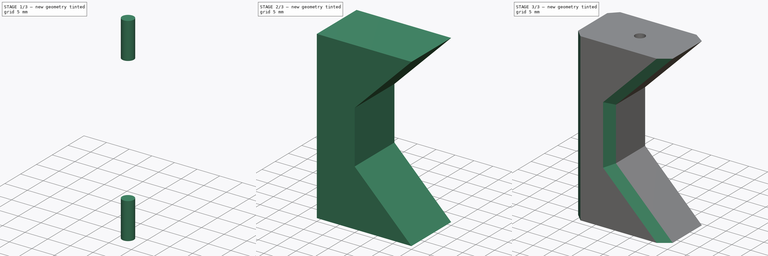
[diagram: build sequence overview — one tinted view per stage of 3, left to right]
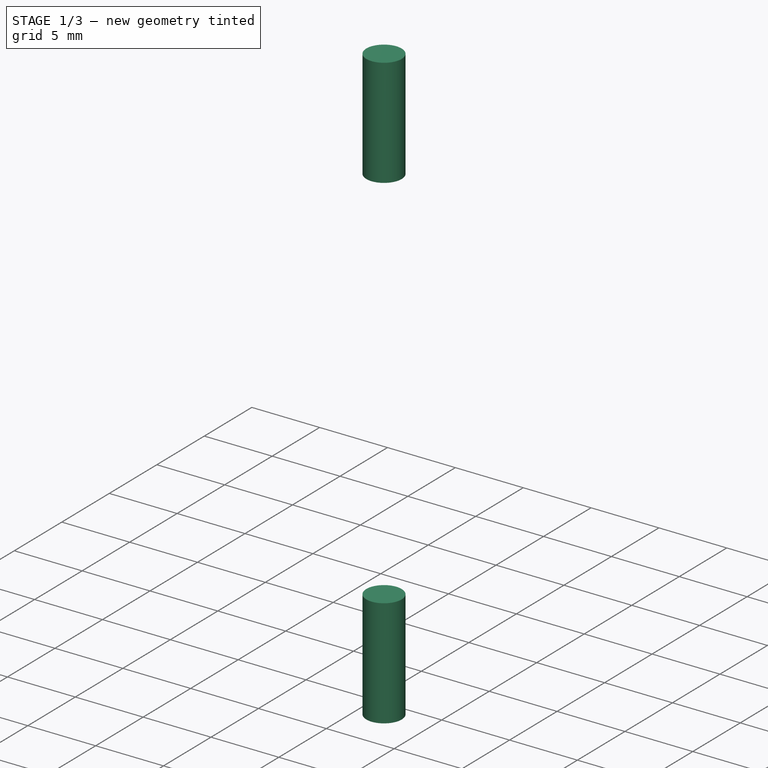
[diagram: stage 1 of 3 — iso view after this stage's code; geometry added in this stage tinted green]
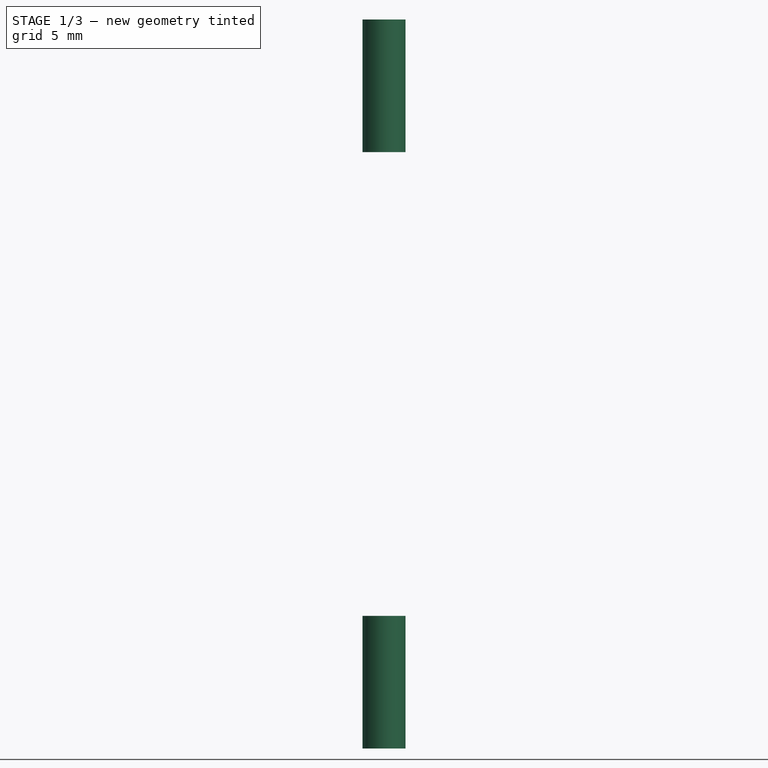
[diagram: stage 1 of 3 — front view after this stage's code; geometry added in this stage tinted green]
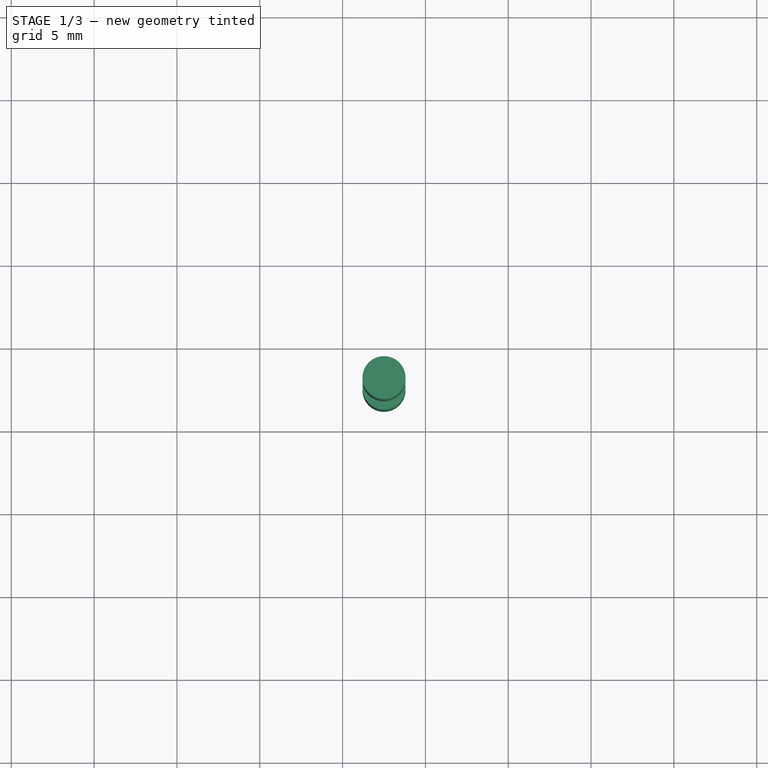
[diagram: stage 1 of 3 — top view after this stage's code; geometry added in this stage tinted green]
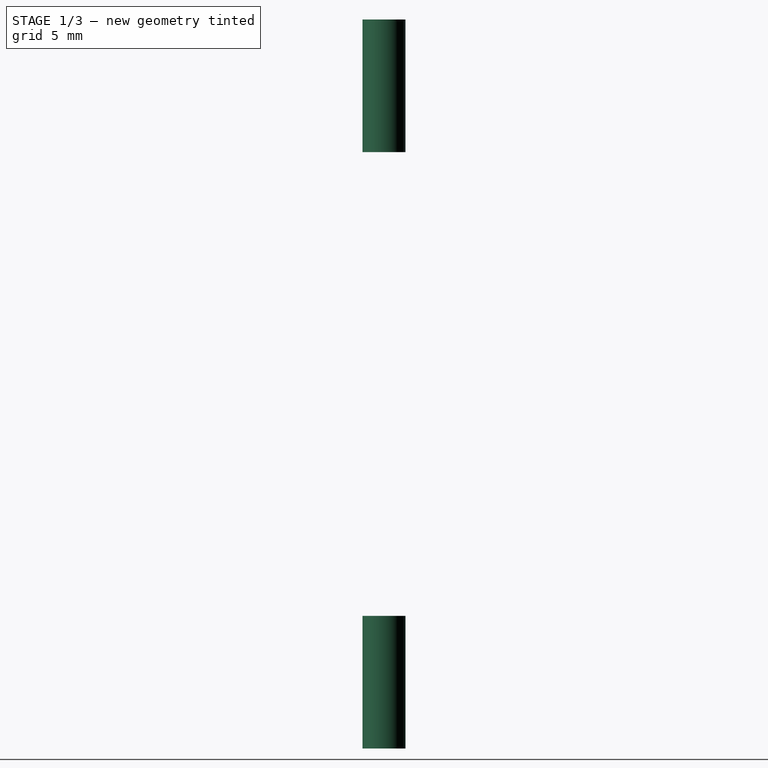
[diagram: stage 1 of 3 — right view after this stage's code; geometry added in this stage tinted green]
FCSTD DOCUMENT  (FreeCAD 0.18.4R)
Label: spacer
License: All rights reserved
LicenseURL: http://en.wikipedia.org/wiki/All_rights_reserved
objects: Part::Cylinder×2, Sketcher::SketchObject×1, PartDesign::Body×1, Part::Extrusion×1, Part::Chamfer×1, Part::MultiFuse×1, Part::Cut×1
note: 8 computed .brp shape members not serialized (recipe doc carries the construction recipe); baked Part::Feature solids carry a one-line shape summary decoded from their .brp

FEATURE [Sketcher::SketchObject] Sketch
  MapMode = 5
  Placement = pos=(0,0,0) rot=(1,0,0;1.5708rad)
  Support = -> [XZ_Plane]
  sketch-geometry (6):
    g0: LineSegment StartX=0 StartY=0 StartZ=0 EndX=25 EndY=0 EndZ=0
    g1: LineSegment StartX=25 StartY=44 StartZ=0 EndX=0 EndY=44 EndZ=0
    g2: LineSegment StartX=0 StartY=44 StartZ=0 EndX=0 EndY=0 EndZ=0
    g3: LineSegment StartX=25 StartY=44 StartZ=0 EndX=10 EndY=29 EndZ=0
    g4: LineSegment StartX=10 StartY=29 StartZ=0 EndX=10 EndY=15 EndZ=0
    g5: LineSegment StartX=10 StartY=15 StartZ=0 EndX=25 EndY=1.8e-15 EndZ=0
  constraints (17):
    c: Coincident(g1,g2)
    c: Coincident(g2,g0)
    c: Horizontal(g0)
    c: Horizontal(g1)
    c: Vertical(g2)
    c: Coincident(g0,g-1)
    c: DistanceX(g0,g0) = 25
    c: DistanceY(g0,g1) = 44
    c: Coincident(g1,g3)
    c: Coincident(g3,g4)
    c: Vertical(g4)
    c: Coincident(g4,g5)
    c: Coincident(g5,g0)
    c: Equal(g0,g1)
    c: Equal(g3,g5)
    c: Angle(g5,g0) = 0.785398
    c: DistanceX(g0,g4) = 10
FEATURE [PartDesign::Body] Body
  Group = -> [Sketch]
  Origin = -> Origin
FEATURE [Part::Cylinder] Cylinder  label="Cylinder000"
  Angle = 360
  AttacherType = Attacher::AttachEngine3D
  Height = 8
  Placement = pos=(12.5,-7.5,0) rot=(0,0,1;0rad)
  Radius = 1.3
FEATURE [Part::Cylinder] Cylinder001
  Angle = 360
  AttacherType = Attacher::AttachEngine3D
  Height = 8
  Placement = pos=(12.5,-7.5,36) rot=(0,0,1;0rad)
  Radius = 1.3
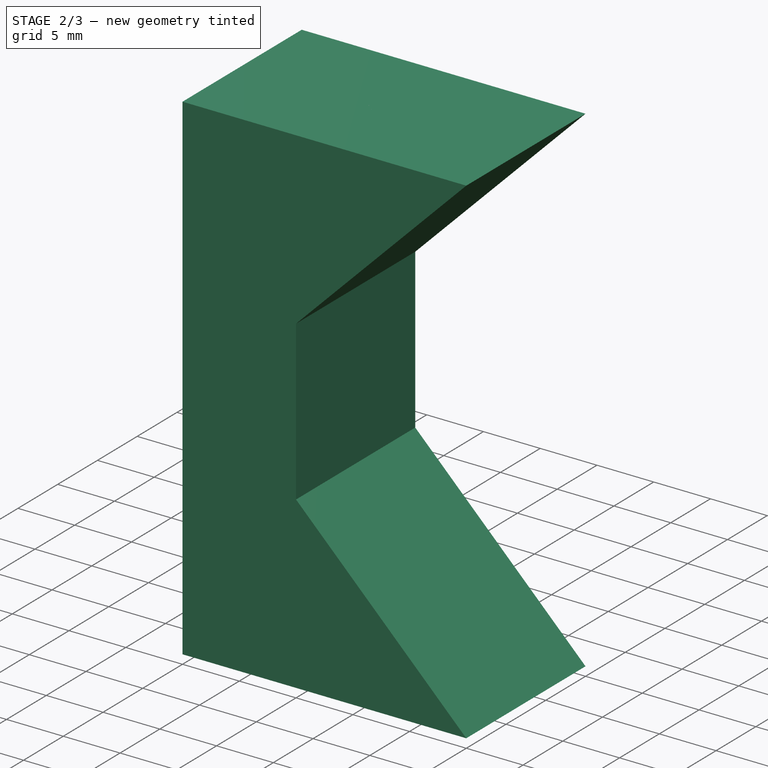
[diagram: stage 2 of 3 — iso view after this stage's code; geometry added in this stage tinted green]
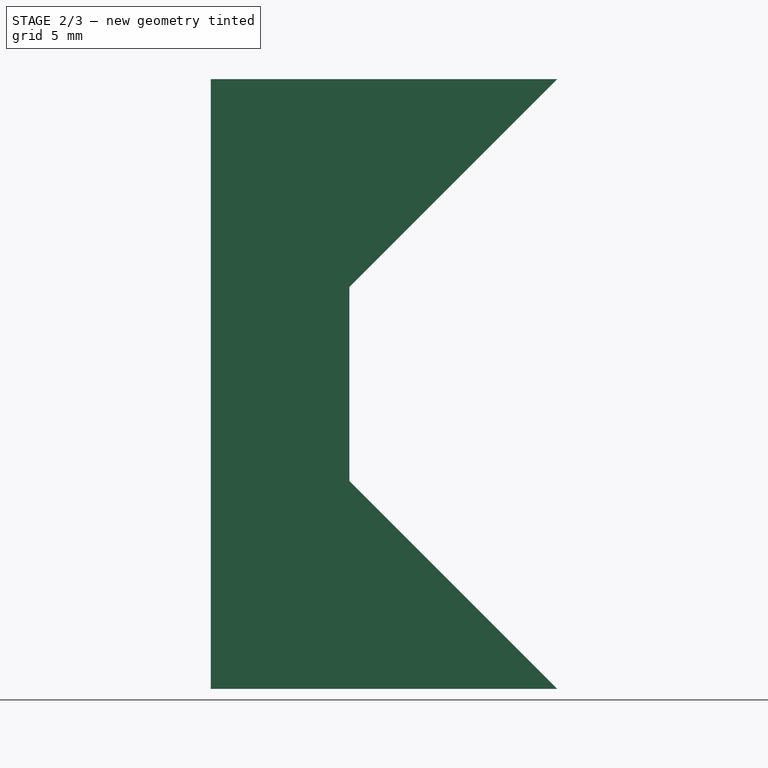
[diagram: stage 2 of 3 — front view after this stage's code; geometry added in this stage tinted green]
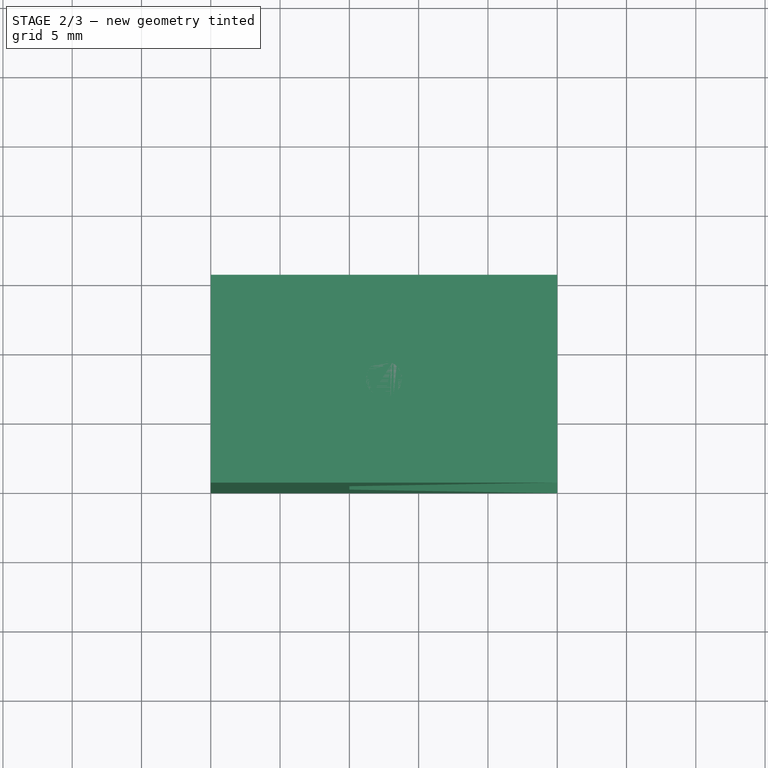
[diagram: stage 2 of 3 — top view after this stage's code; geometry added in this stage tinted green]
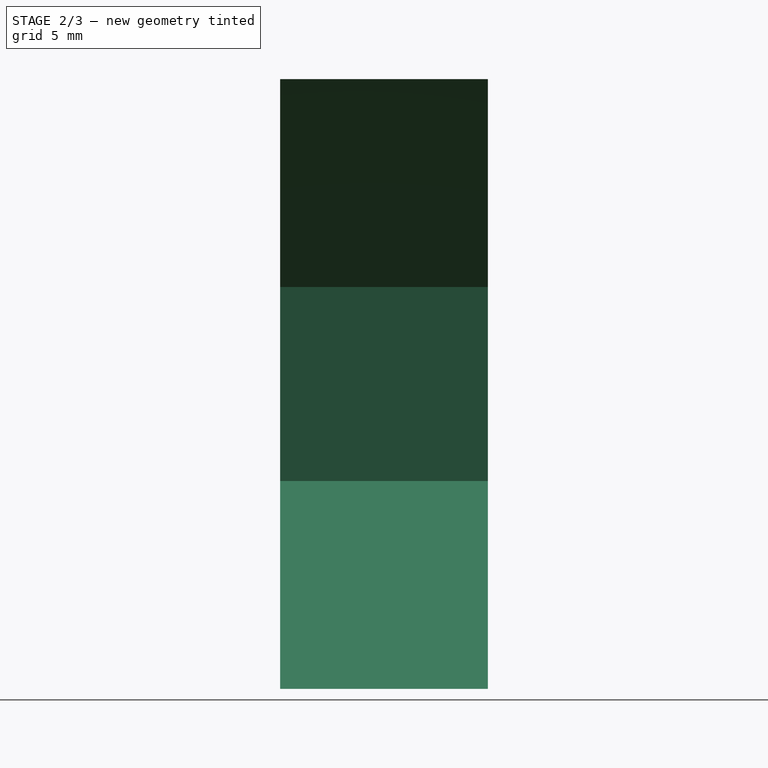
[diagram: stage 2 of 3 — right view after this stage's code; geometry added in this stage tinted green]
FEATURE [Part::Extrusion] Extrude
  Base = -> Sketch
  Dir = (0,-1,-2e-16)
  DirMode = 2
  FaceMakerClass = Part::FaceMakerBullseye
  LengthFwd = 15
  LengthRev = 0
  Solid = true
  Symmetric = false
FEATURE [Part::MultiFuse] Fusion
  Shapes = -> [Cylinder001,Cylinder]
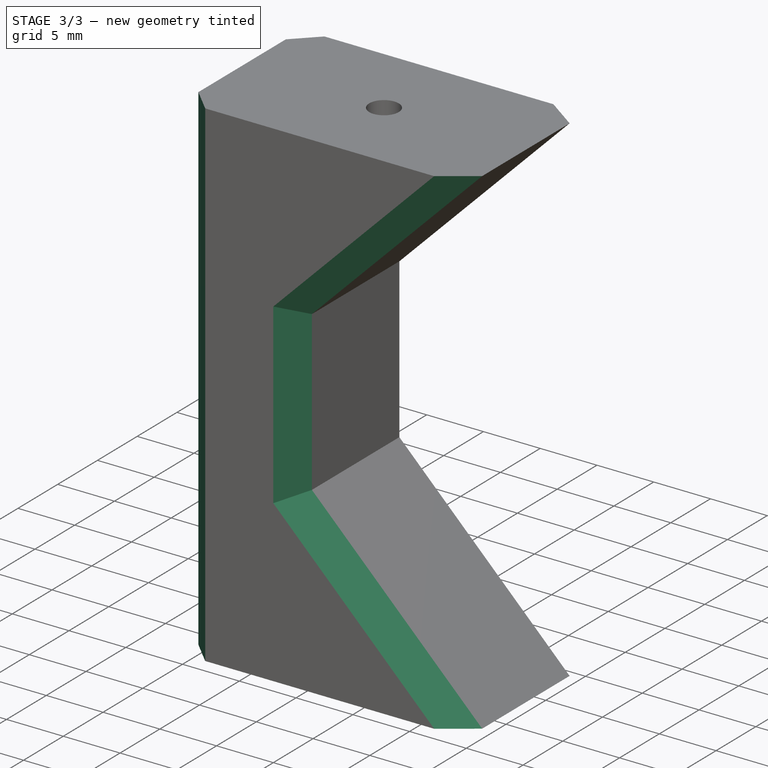
[diagram: stage 3 of 3 — iso view after this stage's code; geometry added in this stage tinted green]
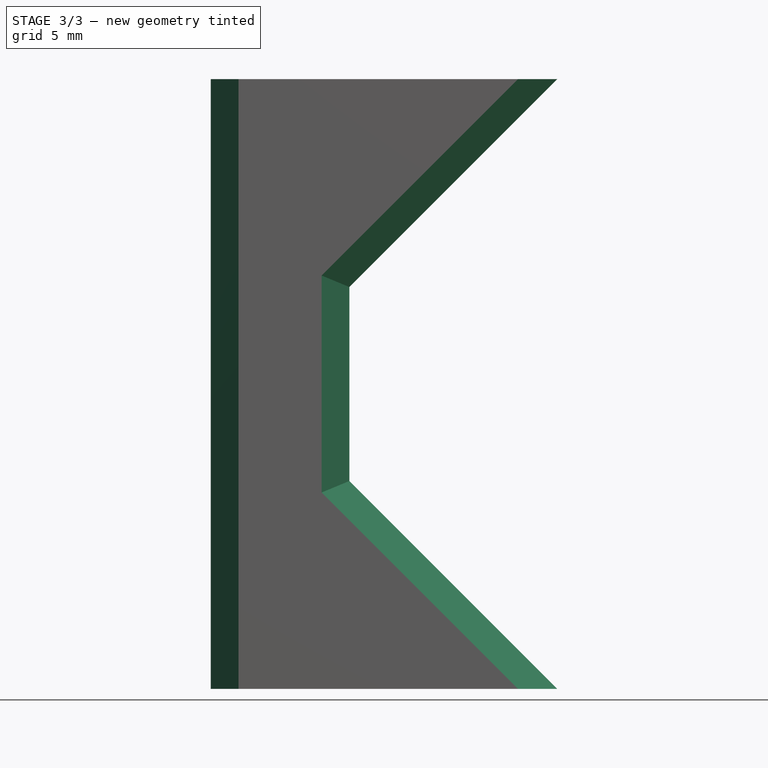
[diagram: stage 3 of 3 — front view after this stage's code; geometry added in this stage tinted green]
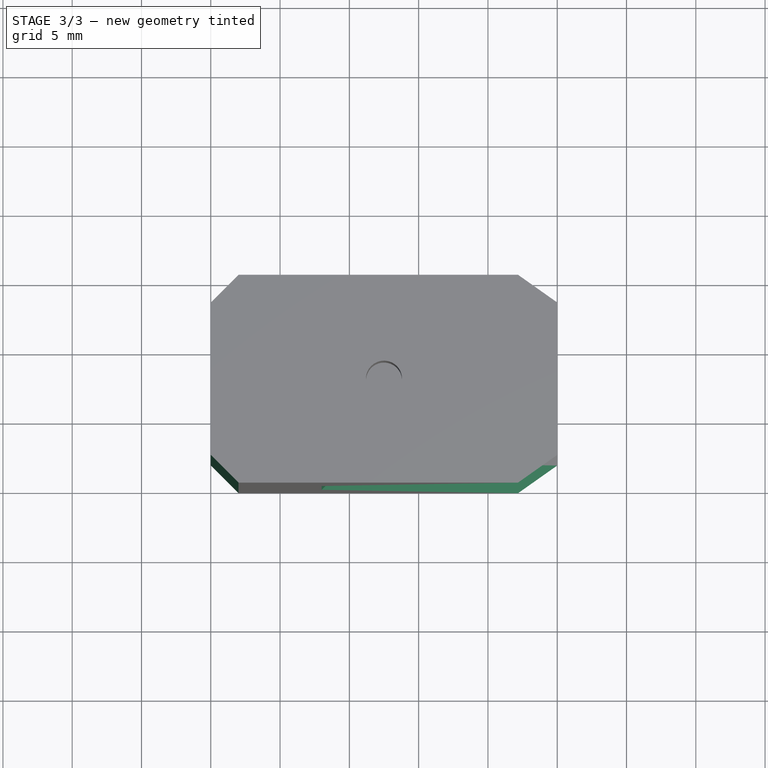
[diagram: stage 3 of 3 — top view after this stage's code; geometry added in this stage tinted green]
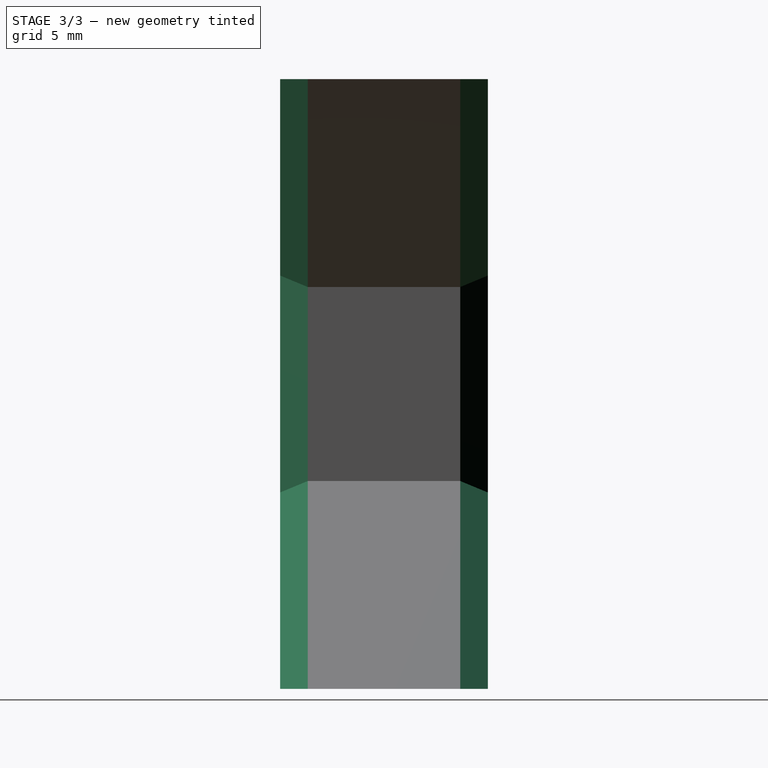
[diagram: stage 3 of 3 — right view after this stage's code; geometry added in this stage tinted green]
FEATURE [Part::Chamfer] Chamfer
  Base = -> Extrude
  Edges = 8 edges r=2: [Edge6,Edge7,Edge12,Edge13,Edge15,Edge16,Edge17,Edge18]
FEATURE [Part::Cut] Cut
  Base = -> Chamfer
  Tool = -> Fusion
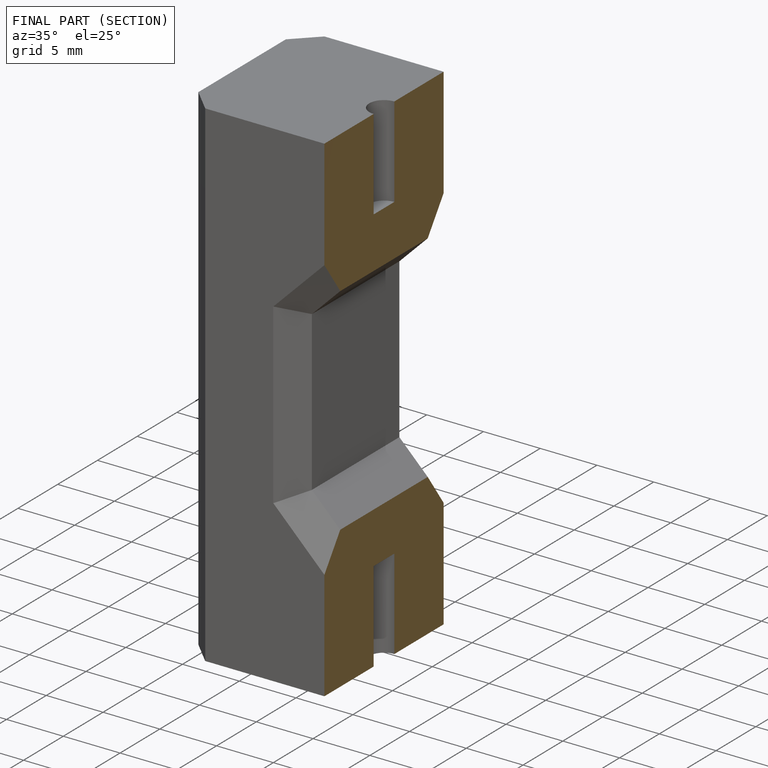
[diagram: finished part — half-section view (interior)]
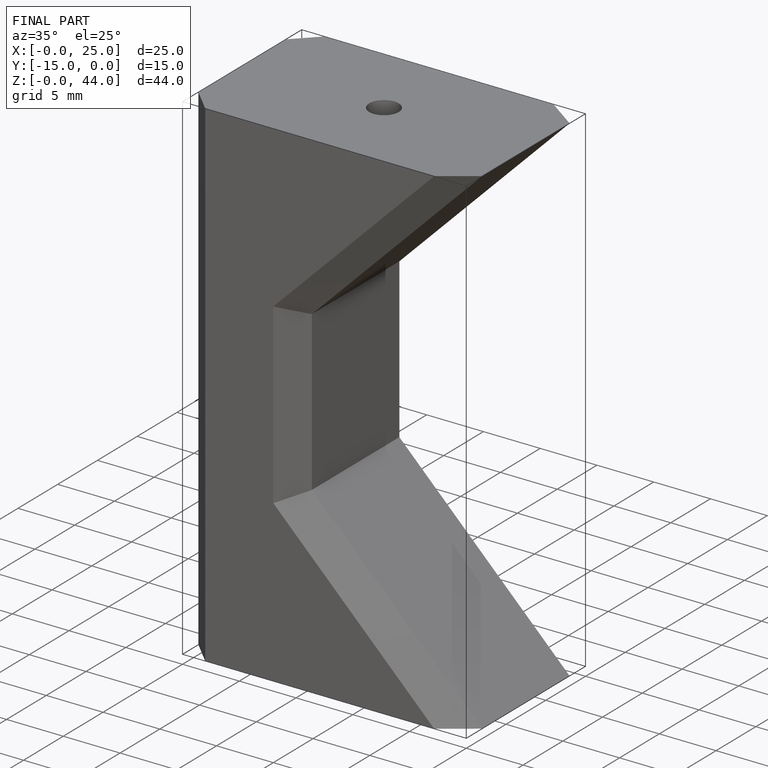
[diagram: finished part — iso view with bounding-box wireframe]
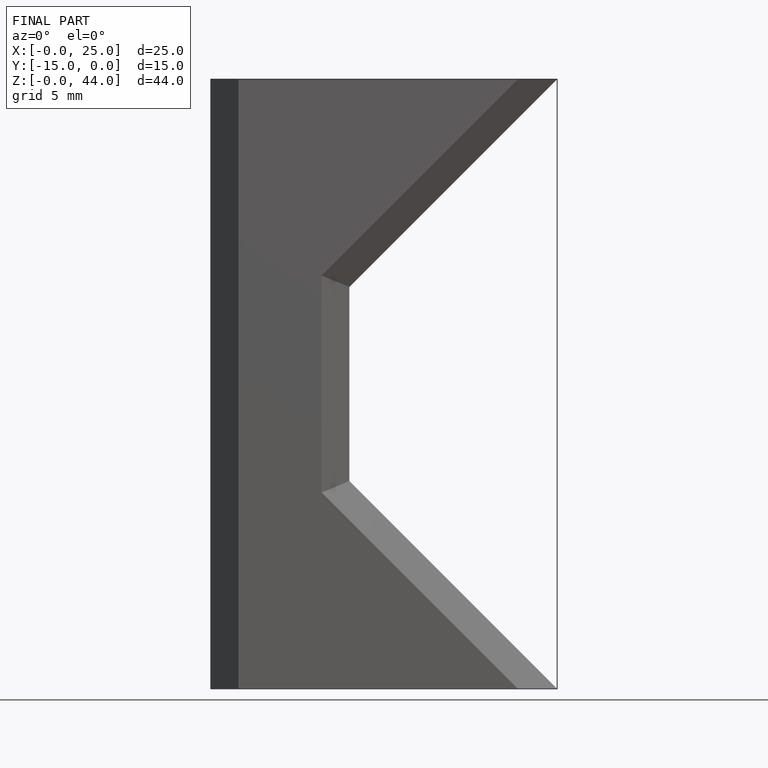
[diagram: finished part — front view with bounding-box wireframe]
